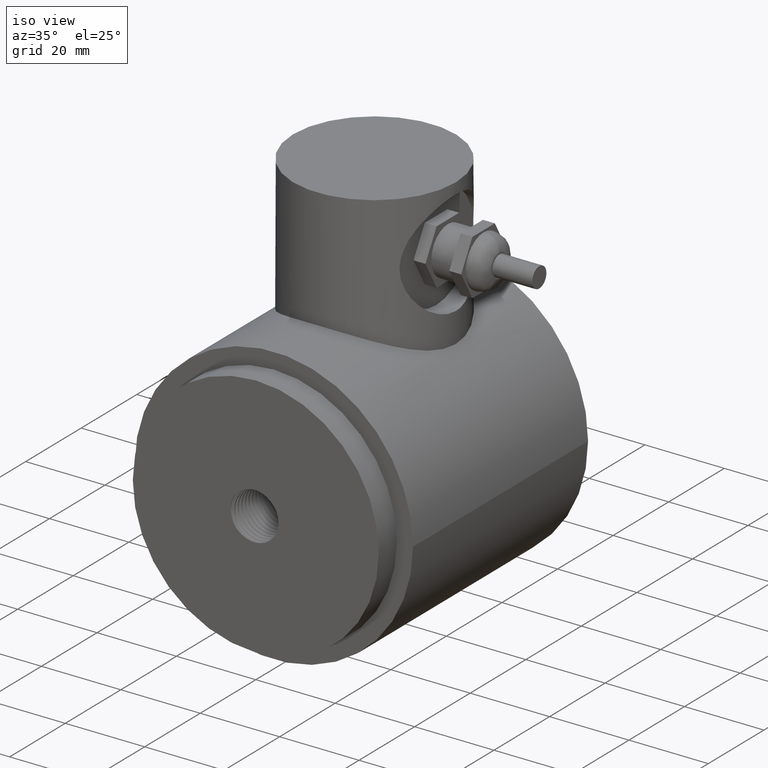
[diagram: clean part render]
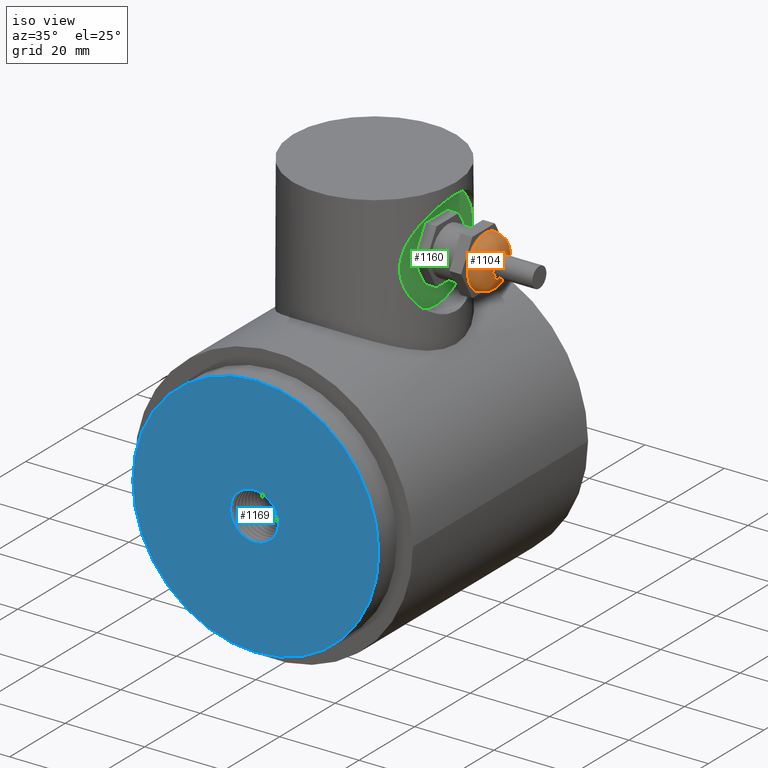
[diagram: same view with three faces highlighted in distinct colors, each labeled with its STEP entity id]
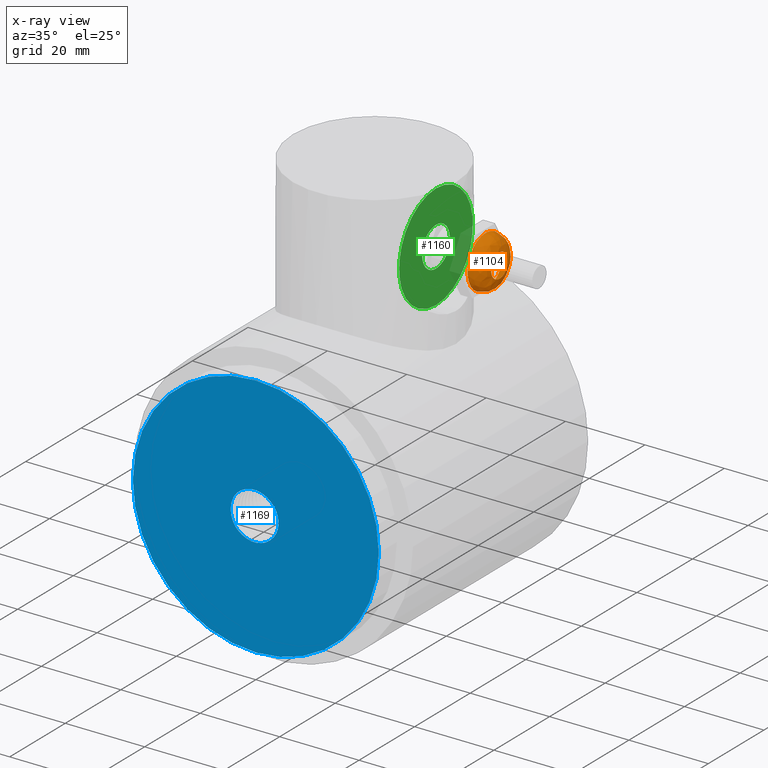
[diagram: x-ray of the same camera — body ghosted, the three highlighted faces saturated]
A machine part, iso view with three faces highlighted in distinct colors.
The next image is the same camera in x-ray (body ghosted, the three faces saturated) — at least one of them is partly hidden behind the body in this view.
Their STEP definitions:

[orange] entity #1104 — the highlighted face is a freeform B-spline surface patch.
#101=(
BOUNDED_SURFACE()
B_SPLINE_SURFACE(2,2,((#1569,#1570,#1571,#1572,#1573,#1574,#1575,#1576,
#1577),(#1578,#1579,#1580,#1581,#1582,#1583,#1584,#1585,#1586),(#1587,#1588,
#1589,#1590,#1591,#1592,#1593,#1594,#1595)),.UNSPECIFIED.,.F.,.T.,.F.)
B_SPLINE_SURFACE_WITH_KNOTS((3,3),(3,2,2,2,3),(0.,1.5707963267949),(-3.14159265358979,
-1.5707963267949,0.,1.5707963267949,3.14159265358979),.UNSPECIFIED.)
GEOMETRIC_REPRESENTATION_ITEM()
RATIONAL_B_SPLINE_SURFACE(((1.,0.707106781186548,1.,0.707106781186548,1.,
0.707106781186548,1.,0.707106781186548,1.),(0.707106781186547,0.499999999999999,
0.707106781186547,0.499999999999999,0.707106781186547,0.499999999999999,
0.707106781186547,0.499999999999999,0.707106781186547),(1.,0.707106781186548,
1.,0.707106781186548,1.,0.707106781186548,1.,0.707106781186548,1.)))
REPRESENTATION_ITEM('')
SURFACE()
);
#131=FACE_OUTER_BOUND('',#201,.T.);
#201=EDGE_LOOP('',(#741,#742,#743,#744));
#432=CIRCLE('',#1194,0.118110236220472);
#433=CIRCLE('',#1195,0.137795275590551);
#434=CIRCLE('',#1196,0.255905511811024);
#460=VERTEX_POINT('',#1596);
#461=VERTEX_POINT('',#1598);
#572=EDGE_CURVE('',#460,#460,#432,.T.);
#573=EDGE_CURVE('',#460,#461,#433,.T.);
#574=EDGE_CURVE('',#461,#461,#434,.T.);
#741=ORIENTED_EDGE('',*,*,#572,.T.);
#742=ORIENTED_EDGE('',*,*,#573,.T.);
#743=ORIENTED_EDGE('',*,*,#574,.T.);
#744=ORIENTED_EDGE('',*,*,#573,.F.);
#1104=ADVANCED_FACE('',(#131),#101,.F.);
#1194=AXIS2_PLACEMENT_3D('',#1597,#1304,#1305);
#1195=AXIS2_PLACEMENT_3D('',#1599,#1306,#1307);
#1196=AXIS2_PLACEMENT_3D('',#1600,#1308,#1309);
#1304=DIRECTION('center_axis',(-1.,0.,0.));
#1305=DIRECTION('ref_axis',(0.,0.,-1.));
#1306=DIRECTION('center_axis',(0.,-1.,-1.22464679914735E-16));
#1307=DIRECTION('ref_axis',(0.,-1.22464679914735E-16,1.));
#1308=DIRECTION('center_axis',(1.,0.,0.));
#1309=DIRECTION('ref_axis',(0.,0.,-1.));
#1569=CARTESIAN_POINT('Ctrl Pts',(0.492125984251968,0.,0.255905511811024));
#1570=CARTESIAN_POINT('Ctrl Pts',(0.492125984251968,-0.255905511811024,
0.255905511811024));
#1571=CARTESIAN_POINT('Ctrl Pts',(0.492125984251968,-0.255905511811024,
0.));
#1572=CARTESIAN_POINT('Ctrl Pts',(0.492125984251968,-0.255905511811024,
-0.255905511811024));
#1573=CARTESIAN_POINT('Ctrl Pts',(0.492125984251968,0.,-0.255905511811024));
#1574=CARTESIAN_POINT('Ctrl Pts',(0.492125984251968,0.255905511811024,-0.255905511811024));
#1575=CARTESIAN_POINT('Ctrl Pts',(0.492125984251968,0.255905511811024,0.));
#1576=CARTESIAN_POINT('Ctrl Pts',(0.492125984251968,0.255905511811024,0.255905511811024));
#1577=CARTESIAN_POINT('Ctrl Pts',(0.492125984251968,0.,0.255905511811024));
#1578=CARTESIAN_POINT('Ctrl Pts',(0.62992125984252,0.,0.255905511811024));
#1579=CARTESIAN_POINT('Ctrl Pts',(0.62992125984252,-0.255905511811024,0.255905511811024));
#1580=CARTESIAN_POINT('Ctrl Pts',(0.62992125984252,-0.255905511811024,0.));
#1581=CARTESIAN_POINT('Ctrl Pts',(0.62992125984252,-0.255905511811024,-0.255905511811024));
#1582=CARTESIAN_POINT('Ctrl Pts',(0.62992125984252,0.,-0.255905511811024));
#1583=CARTESIAN_POINT('Ctrl Pts',(0.62992125984252,0.255905511811024,-0.255905511811024));
#1584=CARTESIAN_POINT('Ctrl Pts',(0.62992125984252,0.255905511811024,0.));
#1585=CARTESIAN_POINT('Ctrl Pts',(0.62992125984252,0.255905511811024,0.255905511811024));
#1586=CARTESIAN_POINT('Ctrl Pts',(0.62992125984252,0.,0.255905511811024));
#1587=CARTESIAN_POINT('Ctrl Pts',(0.62992125984252,0.,0.118110236220472));
#1588=CARTESIAN_POINT('Ctrl Pts',(0.62992125984252,-0.118110236220472,0.118110236220472));
#1589=CARTESIAN_POINT('Ctrl Pts',(0.62992125984252,-0.118110236220472,0.));
#1590=CARTESIAN_POINT('Ctrl Pts',(0.62992125984252,-0.118110236220472,-0.118110236220472));
#1591=CARTESIAN_POINT('Ctrl Pts',(0.62992125984252,0.,-0.118110236220472));
#1592=CARTESIAN_POINT('Ctrl Pts',(0.62992125984252,0.118110236220472,-0.118110236220472));
#1593=CARTESIAN_POINT('Ctrl Pts',(0.62992125984252,0.118110236220472,0.));
#1594=CARTESIAN_POINT('Ctrl Pts',(0.62992125984252,0.118110236220472,0.118110236220472));
#1595=CARTESIAN_POINT('Ctrl Pts',(0.62992125984252,0.,0.118110236220472));
#1596=CARTESIAN_POINT('',(0.62992125984252,1.44643322733939E-17,0.118110236220472));
#1597=CARTESIAN_POINT('Origin',(0.62992125984252,0.,0.));
#1598=CARTESIAN_POINT('',(0.492125984251968,-3.13393865923535E-17,0.255905511811024));
#1599=CARTESIAN_POINT('Origin',(0.492125984251968,-1.44643322733939E-17,
0.118110236220472));
#1600=CARTESIAN_POINT('Origin',(0.492125984251968,0.,0.));

[blue] entity #1169 — the highlighted planar face has unit normal (0, 1, 0).
#74=B_SPLINE_CURVE_WITH_KNOTS('',3,(#3961,#3962,#3963,#3964,#3965,#3966,
#3967,#3968,#3969,#3970,#3971,#3972,#3973,#3974,#3975,#3976,#3977,#3978,
#3979,#3980,#3981,#3982,#3983,#3984,#3985,#3986,#3987,#3988,#3989,#3990,
#3991,#3992,#3993,#3994,#3995,#3996,#3997,#3998,#3999,#4000,#4001,#4002,
#4003,#4004,#4005,#4006),.UNSPECIFIED.,.F.,.F.,(4,3,3,3,3,3,3,3,3,3,3,3,
3,3,3,4),(0.,0.110089324612399,0.208524744354544,0.247951436485037,0.292110688422313,
0.378409362607987,0.445316741849255,0.478415291693734,0.592934551768965,
0.684121437987858,0.717525435429122,0.809716536470516,0.875289301953621,
0.90190763751191,1.01982663620377,1.0665731581873),.UNSPECIFIED.);
#77=B_SPLINE_CURVE_WITH_KNOTS('',3,(#4753,#4754,#4755,#4756,#4757,#4758,
#4759,#4760,#4761,#4762,#4763,#4764,#4765,#4766,#4767,#4768,#4769,#4770,
#4771,#4772,#4773,#4774,#4775,#4776,#4777,#4778,#4779,#4780,#4781,#4782,
#4783,#4784,#4785,#4786,#4787,#4788,#4789,#4790,#4791,#4792,#4793,#4794,
#4795,#4796,#4797,#4798),.UNSPECIFIED.,.F.,.F.,(4,3,3,3,3,3,3,3,3,3,3,3,
3,3,3,4),(0.,0.118305054178304,0.220045403143788,0.267409440292111,0.314366169387285,
0.43100184360844,0.479496851500056,0.509238719531715,0.620324997191824,
0.707629872141017,0.7419945497787,0.829637631958863,0.892372895231624,0.917280714139026,
1.02881000361113,1.06882629286301),.UNSPECIFIED.);
#100=FACE_BOUND('',#277,.T.);
#126=PLANE('',#1280);
#196=FACE_OUTER_BOUND('',#276,.T.);
#276=EDGE_LOOP('',(#1056));
#277=EDGE_LOOP('',(#1057,#1058,#1059,#1060));
#439=CIRCLE('',#1234,0.22575);
#441=CIRCLE('',#1249,0.25);
#455=CIRCLE('',#1279,1.22);
#518=VERTEX_POINT('',#2668);
#519=VERTEX_POINT('',#2694);
#545=VERTEX_POINT('',#3148);
#546=VERTEX_POINT('',#3155);
#565=VERTEX_POINT('',#4969);
#656=EDGE_CURVE('',#519,#518,#439,.F.);
#695=EDGE_CURVE('',#546,#545,#441,.T.);
#703=EDGE_CURVE('',#518,#546,#74,.T.);
#706=EDGE_CURVE('',#545,#519,#77,.T.);
#730=EDGE_CURVE('',#565,#565,#455,.T.);
#1056=ORIENTED_EDGE('',*,*,#730,.F.);
#1057=ORIENTED_EDGE('',*,*,#706,.T.);
#1058=ORIENTED_EDGE('',*,*,#656,.T.);
#1059=ORIENTED_EDGE('',*,*,#703,.T.);
#1060=ORIENTED_EDGE('',*,*,#695,.T.);
#1169=ADVANCED_FACE('',(#196,#100),#126,.F.);
#1234=AXIS2_PLACEMENT_3D('',#2695,#1437,#1438);
#1249=AXIS2_PLACEMENT_3D('',#3156,#1479,#1480);
#1279=AXIS2_PLACEMENT_3D('',#4971,#1547,#1548);
#1280=AXIS2_PLACEMENT_3D('',#4972,#1549,#1550);
#1437=DIRECTION('center_axis',(0.,-1.,0.));
#1438=DIRECTION('ref_axis',(0.,0.,-1.));
#1479=DIRECTION('center_axis',(0.,1.,0.));
#1480=DIRECTION('ref_axis',(-6.07628436173543E-14,0.,-1.));
#1547=DIRECTION('center_axis',(0.,1.,0.));
#1548=DIRECTION('ref_axis',(1.,0.,0.));
#1549=DIRECTION('center_axis',(0.,1.,0.));
#1550=DIRECTION('ref_axis',(1.,0.,0.));
#2668=CARTESIAN_POINT('',(0.1422988103863,1.09273919746571E-17,-0.175254418097358));
#2694=CARTESIAN_POINT('',(0.142298810386301,0.,0.175254418097358));
#2695=CARTESIAN_POINT('Origin',(0.,0.,0.));
#3148=CARTESIAN_POINT('',(-0.220181967125725,0.,0.118405664360477));
#3155=CARTESIAN_POINT('',(-0.220181967125726,0.,-0.118405664360477));
#3156=CARTESIAN_POINT('Origin',(0.,0.,0.));
#3961=CARTESIAN_POINT('Ctrl Pts',(0.1422988103863,1.09273919746571E-17,
-0.175254418097358));
#3962=CARTESIAN_POINT('Ctrl Pts',(0.131658807965356,9.46325386640043E-18,
-0.185027761091059));
#3963=CARTESIAN_POINT('Ctrl Pts',(0.120115440354673,1.47510365193036E-17,
-0.193714218103368));
#3964=CARTESIAN_POINT('Ctrl Pts',(0.10786770723169,1.10588621593521E-17,
-0.201255379952526));
#3965=CARTESIAN_POINT('Ctrl Pts',(0.0969165023342549,7.75753631179508E-18,
-0.207998244754168));
#3966=CARTESIAN_POINT('Ctrl Pts',(0.0854007985241229,-8.69001754201249E-18,
-0.213825540033622));
#3967=CARTESIAN_POINT('Ctrl Pts',(0.0734396301735705,-1.51788304147971E-17,
-0.218670637200381));
#3968=CARTESIAN_POINT('Ctrl Pts',(0.0686487804640497,-1.77778179347144E-17,
-0.220611261366322));
#3969=CARTESIAN_POINT('Ctrl Pts',(0.0637830503040694,2.88255391671673E-17,
-0.222394699733991));
#3970=CARTESIAN_POINT('Ctrl Pts',(0.0588741660238671,2.64545330086463E-17,
-0.224008351230667));
#3971=CARTESIAN_POINT('Ctrl Pts',(0.0533760467055403,2.37989245200512E-17,
-0.225815696435912));
#3972=CARTESIAN_POINT('Ctrl Pts',(0.0478181161940038,-5.8664366296669E-18,
-0.227412679841391));
#3973=CARTESIAN_POINT('Ctrl Pts',(0.0422117787619401,-6.93889390390723E-18,
-0.228794904235293));
#3974=CARTESIAN_POINT('Ctrl Pts',(0.0312555359317436,-9.85221490132165E-18,
-0.231496130533018));
#3975=CARTESIAN_POINT('Ctrl Pts',(0.020114775445797,-1.81029664957147E-17,
-0.233378274908199));
#3976=CARTESIAN_POINT('Ctrl Pts',(0.00888044767630314,-1.99493199737333E-17,
-0.234455071730924));
#3977=CARTESIAN_POINT('Ctrl Pts',(0.000170471124670099,-2.13807981920595E-17,
-0.235289912521512));
#3978=CARTESIAN_POINT('Ctrl Pts',(-0.00859599810383598,-1.12020108273266E-17,
-0.235640333646166));
#3979=CARTESIAN_POINT('Ctrl Pts',(-0.0173780367070942,-1.56125112837913E-17,
-0.235505592480578));
#3980=CARTESIAN_POINT('Ctrl Pts',(-0.0217224415506602,-1.77943508783595E-17,
-0.235438937094641));
#3981=CARTESIAN_POINT('Ctrl Pts',(-0.0260714869453697,-1.06832064801442E-17,
-0.235253140495916));
#3982=CARTESIAN_POINT('Ctrl Pts',(-0.0304036525247077,-8.67361737988404E-18,
-0.234949467725293));
#3983=CARTESIAN_POINT('Ctrl Pts',(-0.0453927199914182,-1.72054366824413E-18,
-0.233898775741502));
#3984=CARTESIAN_POINT('Ctrl Pts',(-0.0602253907040587,1.99274653510057E-17,
-0.231441146448198));
#3985=CARTESIAN_POINT('Ctrl Pts',(-0.0746975084339163,3.46944695195361E-17,
-0.227597155275726));
#3986=CARTESIAN_POINT('Ctrl Pts',(-0.0862210491196666,4.47180924389613E-17,
-0.224536346242901));
#3987=CARTESIAN_POINT('Ctrl Pts',(-0.0975166316375844,-5.74205229234699E-18,
-0.220595530768342));
#3988=CARTESIAN_POINT('Ctrl Pts',(-0.108500094223653,-1.73472347597681E-18,
-0.215824853845649));
#3989=CARTESIAN_POINT('Ctrl Pts',(-0.112523606499755,-2.6674044597177E-19,
-0.214077237644167));
#3990=CARTESIAN_POINT('Ctrl Pts',(-0.116504409331771,-5.05332337906431E-18,
-0.212218140431439));
#3991=CARTESIAN_POINT('Ctrl Pts',(-0.120426506776003,-3.46944695195361E-18,
-0.210256126354483));
#3992=CARTESIAN_POINT('Ctrl Pts',(-0.131251034062329,9.01865552952326E-19,
-0.204841198445591));
#3993=CARTESIAN_POINT('Ctrl Pts',(-0.141653063762036,7.50703808658457E-19,
-0.198633662887412));
#3994=CARTESIAN_POINT('Ctrl Pts',(-0.151548397758716,3.46944695195361E-18,
-0.191692507746537));
#3995=CARTESIAN_POINT('Ctrl Pts',(-0.158586652082742,5.40320741831411E-18,
-0.186755472250778));
#3996=CARTESIAN_POINT('Ctrl Pts',(-0.165368525133552,1.25696025535579E-17,
-0.181446851246849));
#3997=CARTESIAN_POINT('Ctrl Pts',(-0.171860926167319,1.04083408558608E-17,
-0.175782359576055));
#3998=CARTESIAN_POINT('Ctrl Pts',(-0.174496424426734,9.53100727575739E-18,
-0.173482939398342));
#3999=CARTESIAN_POINT('Ctrl Pts',(-0.177081946403425,8.56587465952045E-18,
-0.171126707205432));
#4000=CARTESIAN_POINT('Ctrl Pts',(-0.179612632058709,8.67361737988404E-18,
-0.16871765102953));
#4001=CARTESIAN_POINT('Ctrl Pts',(-0.190823547851,8.87817423517848E-18,
-0.158045552789854));
#4002=CARTESIAN_POINT('Ctrl Pts',(-0.200978524738119,1.53317492220134E-17,
-0.146324937607989));
#4003=CARTESIAN_POINT('Ctrl Pts',(-0.209991075650582,1.90819582357449E-17,
-0.133747747378311));
#4004=CARTESIAN_POINT('Ctrl Pts',(-0.213563913056182,2.05686502026718E-17,
-0.128761783232711));
#4005=CARTESIAN_POINT('Ctrl Pts',(-0.216956849349629,1.89215341245239E-18,
-0.123640740076966));
#4006=CARTESIAN_POINT('Ctrl Pts',(-0.220162868408204,0.,-0.118395027691823));
#4753=CARTESIAN_POINT('Ctrl Pts',(-0.220181967125726,-2.18547839493141E-17,
0.118405664360477));
#4754=CARTESIAN_POINT('Ctrl Pts',(-0.212087108110758,-2.11022865816781E-17,
0.131653963884004));
#4755=CARTESIAN_POINT('Ctrl Pts',(-0.202775566622735,-3.47436179323293E-17,
0.144070288641143));
#4756=CARTESIAN_POINT('Ctrl Pts',(-0.192405385405996,-2.66713734431434E-17,
0.155522911685136));
#4757=CARTESIAN_POINT('Ctrl Pts',(-0.183487204664232,-1.97293794854999E-17,
0.165371974120879));
#4758=CARTESIAN_POINT('Ctrl Pts',(-0.173784801137097,-3.85757296723669E-17,
0.174508325564009));
#4759=CARTESIAN_POINT('Ctrl Pts',(-0.163378972717742,-3.81639164714898E-17,
0.182824834261318));
#4760=CARTESIAN_POINT('Ctrl Pts',(-0.158534660222012,-3.79722016214539E-17,
0.186696488240186));
#4761=CARTESIAN_POINT('Ctrl Pts',(-0.153532229709176,-2.1957680986283E-17,
0.190393352280416));
#4762=CARTESIAN_POINT('Ctrl Pts',(-0.148408175083973,-1.90819582357449E-17,
0.193884107958852));
#4763=CARTESIAN_POINT('Ctrl Pts',(-0.143328184876402,-1.6230965324668E-17,
0.197344844808975));
#4764=CARTESIAN_POINT('Ctrl Pts',(-0.138124988884003,-2.49603996234837E-17,
0.20060655223287));
#4765=CARTESIAN_POINT('Ctrl Pts',(-0.132807515772752,-2.68882138776405E-17,
0.203660078230217));
#4766=CARTESIAN_POINT('Ctrl Pts',(-0.119599460752001,-3.1609262195823E-17,
0.211244722014294));
#4767=CARTESIAN_POINT('Ctrl Pts',(-0.105687213627409,-4.03720846591092E-18,
0.217548498842913));
#4768=CARTESIAN_POINT('Ctrl Pts',(-0.0912696486543261,-8.67361737988404E-19,
0.222508823248696));
#4769=CARTESIAN_POINT('Ctrl Pts',(-0.0852750853972749,4.50603310975436E-19,
0.224571236595297));
#4770=CARTESIAN_POINT('Ctrl Pts',(-0.0791930122699585,-1.14942339958586E-17,
0.226400800407667));
#4771=CARTESIAN_POINT('Ctrl Pts',(-0.0730375068761978,-1.38777878078145E-17,
0.227990350627372));
#4772=CARTESIAN_POINT('Ctrl Pts',(-0.0692623506890173,-1.53396154474756E-17,
0.228965217833701));
#4773=CARTESIAN_POINT('Ctrl Pts',(-0.0654628426031016,-3.54511802977137E-17,
0.229848792734534));
#4774=CARTESIAN_POINT('Ctrl Pts',(-0.061650629127963,-3.46944695195361E-17,
0.230638306271674));
#4775=CARTESIAN_POINT('Ctrl Pts',(-0.0474119604556365,-3.18681445717034E-17,
0.233587149966018));
#4776=CARTESIAN_POINT('Ctrl Pts',(-0.0329624106061732,-2.83990853322838E-17,
0.235236349716444));
#4777=CARTESIAN_POINT('Ctrl Pts',(-0.0184757547493929,-3.29597460435593E-17,
0.235525999914589));
#4778=CARTESIAN_POINT('Ctrl Pts',(-0.00709040901048923,-3.6493575086863E-17,
0.235753641661713));
#4779=CARTESIAN_POINT('Ctrl Pts',(0.00431833142068351,-6.0600456295791E-17,
0.235140491736749));
#4780=CARTESIAN_POINT('Ctrl Pts',(0.0156588674321691,-6.41847686111419E-17,
0.233696754887661));
#4781=CARTESIAN_POINT('Ctrl Pts',(0.0201226945036819,-6.55956146531469E-17,
0.233128475608395));
#4782=CARTESIAN_POINT('Ctrl Pts',(0.0245761890909265,-5.0644789010568E-17,
0.23243100306527));
#4783=CARTESIAN_POINT('Ctrl Pts',(0.0289987402351523,-5.03069808033274E-17,
0.231607835931466));
#4784=CARTESIAN_POINT('Ctrl Pts',(0.0402779385289934,-4.94454405677263E-17,
0.229508444646127));
#4785=CARTESIAN_POINT('Ctrl Pts',(0.0513804102630391,-2.2235689158594E-17,
0.22659017530961));
#4786=CARTESIAN_POINT('Ctrl Pts',(0.0622129759643123,-2.08166817117217E-17,
0.2228702424459));
#4787=CARTESIAN_POINT('Ctrl Pts',(0.0699669691407717,-1.98009505946605E-17,
0.220207499856791));
#4788=CARTESIAN_POINT('Ctrl Pts',(0.0775826111553788,-3.58161258765516E-17,
0.217133612744967));
#4789=CARTESIAN_POINT('Ctrl Pts',(0.0850226342007394,-4.5102810375397E-17,
0.213649639083829));
#4790=CARTESIAN_POINT('Ctrl Pts',(0.0879765509775771,-4.87899082479558E-17,
0.212266394948032));
#4791=CARTESIAN_POINT('Ctrl Pts',(0.0909003204130104,-2.16024352970644E-17,
0.21081953880754));
#4792=CARTESIAN_POINT('Ctrl Pts',(0.0937884538389951,-1.90819582357449E-17,
0.209311093660894));
#4793=CARTESIAN_POINT('Ctrl Pts',(0.106720596556838,-8.2474995401937E-18,
0.202556756155934));
#4794=CARTESIAN_POINT('Ctrl Pts',(0.118961662785402,1.83145971432994E-17,
0.194561149198359));
#4795=CARTESIAN_POINT('Ctrl Pts',(0.130356925429622,1.73472347597681E-17,
0.185459241240762));
#4796=CARTESIAN_POINT('Ctrl Pts',(0.134445502773121,1.70001487778345E-17,
0.182193510926338));
#4797=CARTESIAN_POINT('Ctrl Pts',(0.138424866374695,1.50403925504546E-18,
0.178785002288763));
#4798=CARTESIAN_POINT('Ctrl Pts',(0.142286596811534,0.,0.175238911077034));
#4969=CARTESIAN_POINT('',(-1.22,0.,1.49406909495977E-16));
#4971=CARTESIAN_POINT('Origin',(0.,0.,0.));
#4972=CARTESIAN_POINT('Origin',(0.,0.,0.));

[green] entity #1160 — the highlighted planar face has unit normal (1, 0, 0).
#95=FACE_BOUND('',#263,.T.);
#122=PLANE('',#1264);
#187=FACE_OUTER_BOUND('',#262,.T.);
#262=EDGE_LOOP('',(#1026));
#263=EDGE_LOOP('',(#1027,#1028));
#446=CIRCLE('',#1260,0.196850393700787);
#447=CIRCLE('',#1261,0.196850393700787);
#448=CIRCLE('',#1263,0.523622047244094);
#552=VERTEX_POINT('',#4811);
#553=VERTEX_POINT('',#4812);
#556=VERTEX_POINT('',#4845);
#711=EDGE_CURVE('',#552,#553,#446,.T.);
#712=EDGE_CURVE('',#553,#552,#447,.T.);
#716=EDGE_CURVE('',#556,#556,#448,.T.);
#1026=ORIENTED_EDGE('',*,*,#716,.F.);
#1027=ORIENTED_EDGE('',*,*,#711,.T.);
#1028=ORIENTED_EDGE('',*,*,#712,.T.);
#1160=ADVANCED_FACE('',(#187,#95),#122,.T.);
#1260=AXIS2_PLACEMENT_3D('',#4813,#1503,#1504);
#1261=AXIS2_PLACEMENT_3D('',#4814,#1505,#1506);
#1263=AXIS2_PLACEMENT_3D('',#4847,#1511,#1512);
#1264=AXIS2_PLACEMENT_3D('',#4875,#1513,#1514);
#1503=DIRECTION('center_axis',(-1.,0.,0.));
#1504=DIRECTION('ref_axis',(0.,1.,0.));
#1505=DIRECTION('center_axis',(-1.,0.,0.));
#1506=DIRECTION('ref_axis',(0.,1.,0.));
#1511=DIRECTION('center_axis',(-1.,0.,0.));
#1512=DIRECTION('ref_axis',(0.,0.,-1.));
#1513=DIRECTION('center_axis',(1.,0.,0.));
#1514=DIRECTION('ref_axis',(0.,0.,-1.));
#4811=CARTESIAN_POINT('',(0.610236220472441,1.87795275590551,1.93889763779528));
#4812=CARTESIAN_POINT('',(0.610236220472441,1.48425196850394,1.93889763779528));
#4813=CARTESIAN_POINT('Origin',(0.610236220472441,1.68110236220472,1.93889763779528));
#4814=CARTESIAN_POINT('Origin',(0.610236220472441,1.68110236220472,1.93889763779528));
#4845=CARTESIAN_POINT('',(0.610236220472441,1.68110236220472,2.46251968503937));
#4847=CARTESIAN_POINT('Origin',(0.610236220472441,1.68110236220472,1.93889763779528));
#4875=CARTESIAN_POINT('Origin',(0.610236220472441,1.68110236220472,1.93889763779528));